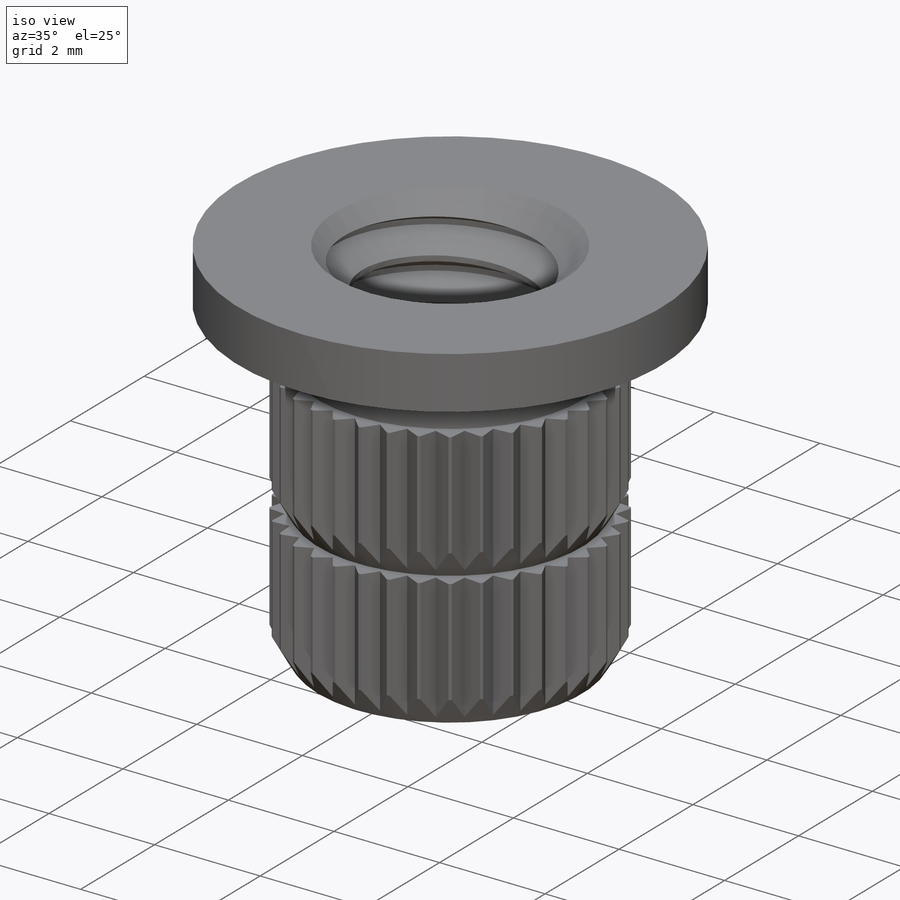
[diagram: iso view]
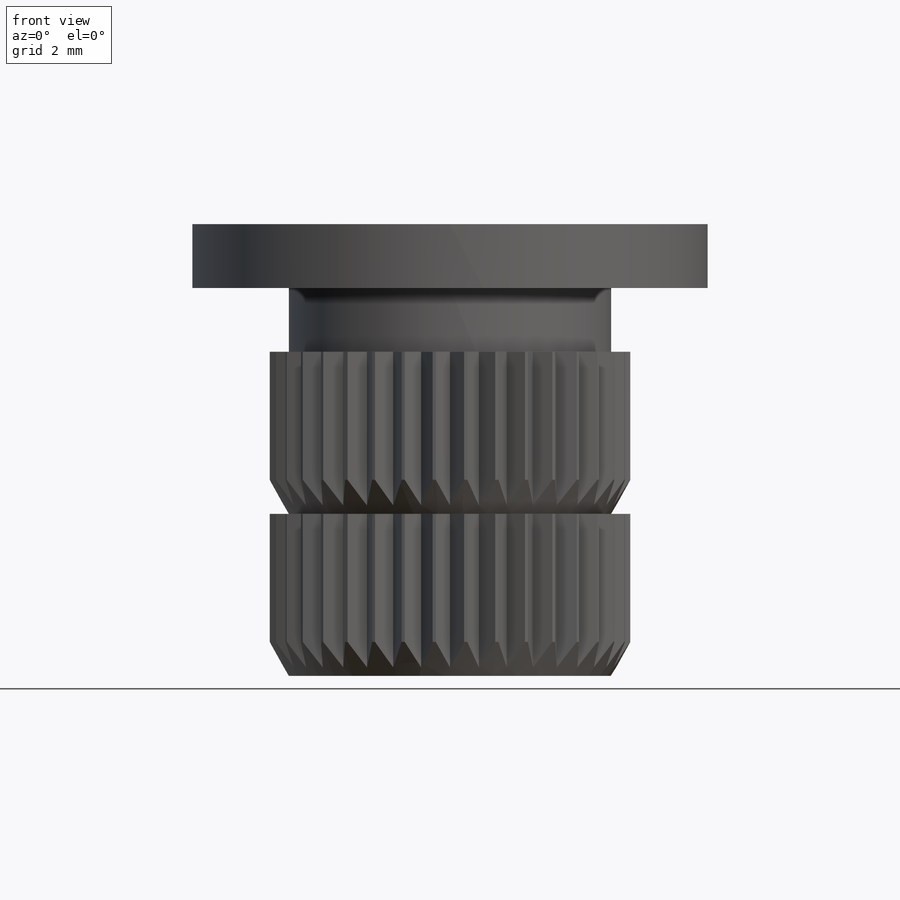
[diagram: front view]
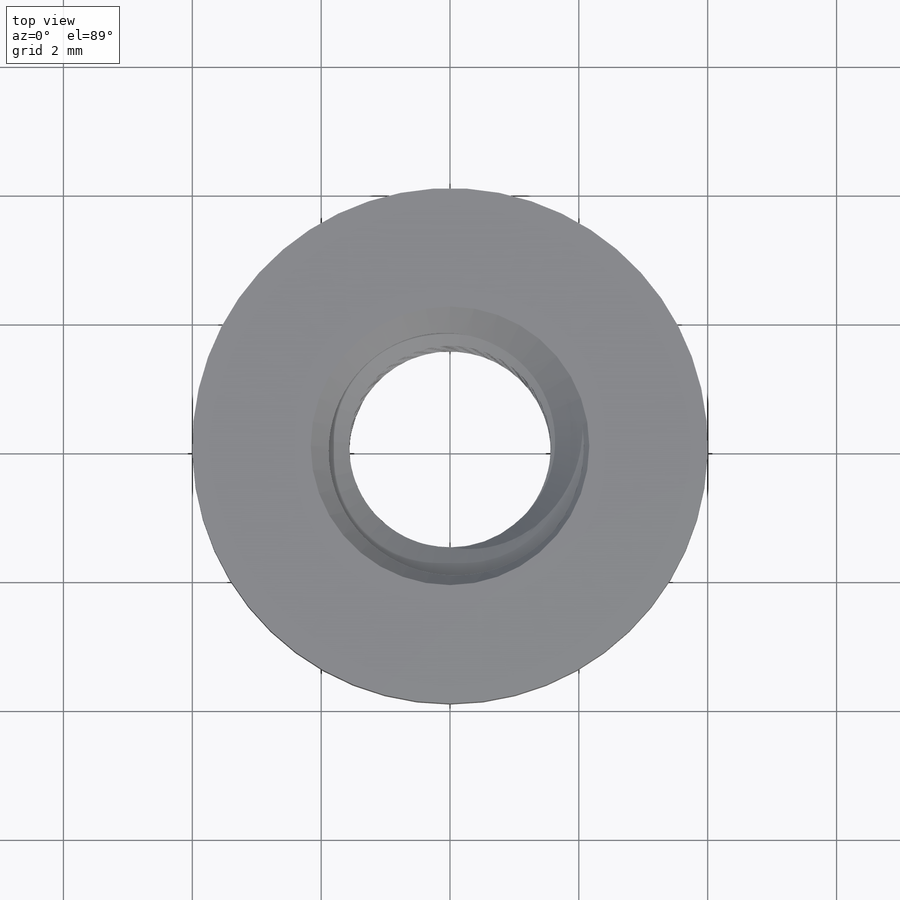
[diagram: top view]
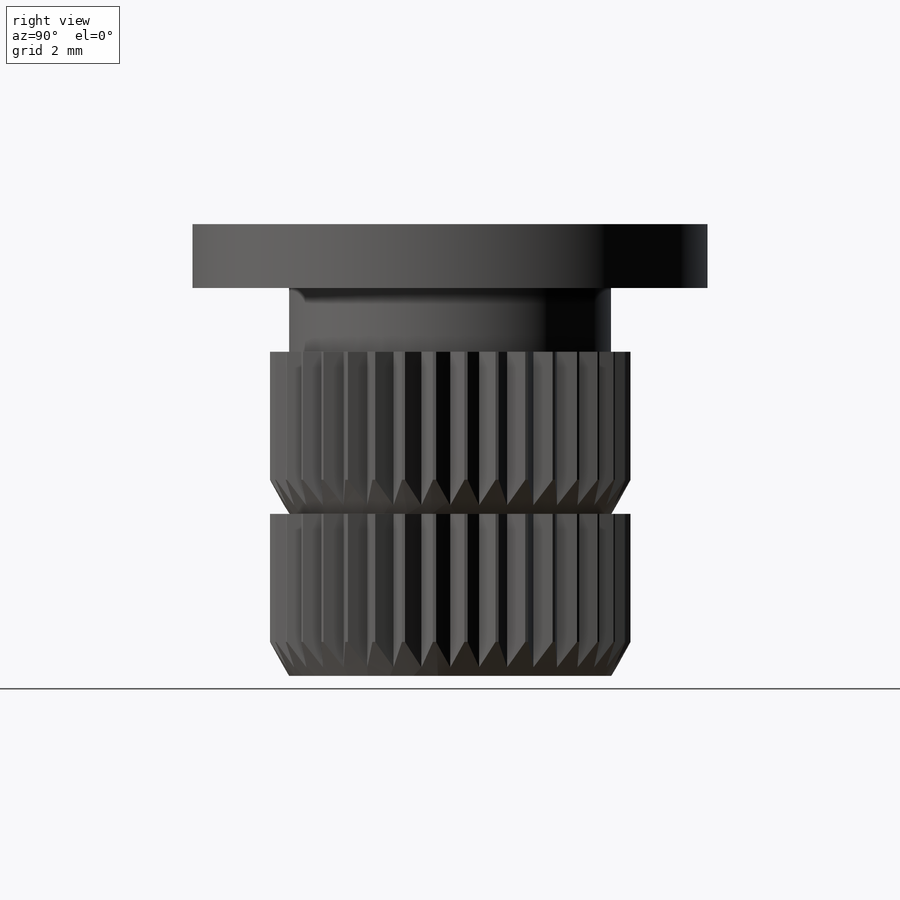
[diagram: right view]
SOLIDWORKS PART (.sldprt)
format: sldprt  version: not decoded by parser v0  size: 648,192 bytes
history: native  units: mm
features: sketch x10, extrude x4, cut_extrude x2, material x1, helix x1, revolve x1, chamfer x1, sweep x1, pattern_circular x1 (+14 scaffold rows collapsed)
feature tree (36):
  scaffold x14  (default folders/planes/origin — collapsed)
  material  "Material <not specified>"
  sketch  "Sketch0"  dims[c1.Length=7.0104mm c1.H=0.9906mm c1.D2=~0.72644mm c1.Slot Height=~4.05892mm c1.Slot Width=~1.04775mm c2.D2=~1.822988mm c3.D2=45.0deg c3.A=2.9972mm c3.D5=4.7752mm c3.D1=~4.05892mm c3.Slot Height=0.381mm c4.D1=~2.341038mm c4.D3=5.0038mm c5.D1=~1.213362mm c5.A1=30.0deg c5.B=5.4102mm c5.D3=~3.041674mm c5.D2=5.6134mm c6.D3=1.2065mm c6.Knurl=7.8867mm c6.D5=8.001mm c6.D6=0.9906mm c6.D7=4.5085mm c6.D4=2.5146mm c7.D7=8.001mm c7.D5=5.0292mm c8.D7=2.5146mm c8.D4=2.5146mm c9.D7=~3.768392mm c9.D4=2.5146mm]
  sketch  "Sketch1"  dims[C=6.1468mm A=6.6802mm]
  extrude  "Extrude1"  [1 undecoded]
  extrude  "Extrude2"  [1 undecoded]
  sketch  "Sketch1<4>"
  extrude  "Extrude3"  [1 undecoded]
  sketch  "Sketch1<3>"
  sketch  "Sketch2"
  extrude  "Extrude4"  [1 undecoded]
  sketch  "Sketch5"  dims[c1.D1=~1.045672mm c2.D1=60.0deg c2.D2=~1.613829mm c3.D1=0.4064mm]
  sketch  "Sketch6"  dims[Thread OD=4.1656mm D1=0.0mm]
  helix  "Helix/Spiral1"  Pitch=15.783795mm Height=15.783795mm
  sketch  "Sketch7"  dims[D1=~0.79375mm D2=~0.099219mm]
  revolve  "Revolve1"  Angle=360deg
  sketch  "Sketch8"  dims[Thread OD=3.5052mm]
  cut_extrude  "Extrude6"  [1 undecoded]
  chamfer  "Chamfer1"  Distance=0.595313mm Angle=45deg
  sweep  "Cut-Sweep1"
  sketch  "Sketch10"
  cut_extrude  "Extrude7"  [1 undecoded]
  pattern_circular  "CirPattern1"  Count=36 Angle=360deg
decode coverage: 10 of 21 modeling features carry decoded parameters
note: ~ marks probable driven/reference dimensions
note: 6 parameter values undecoded
summary: no parameter record found for 6 features
note: suppression state not decoded; provenance and decode notes live in map.json
